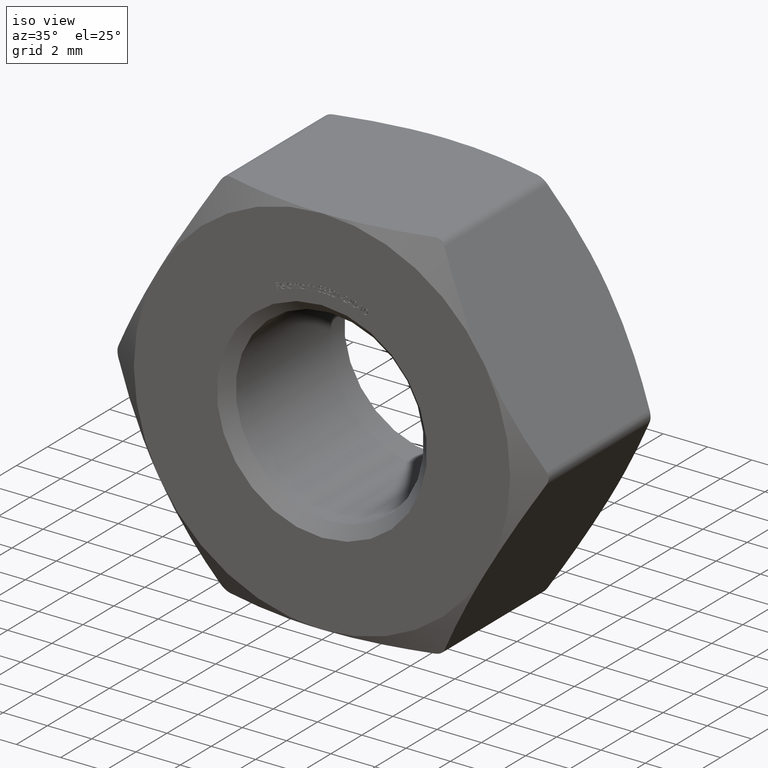
[diagram: clean part render]
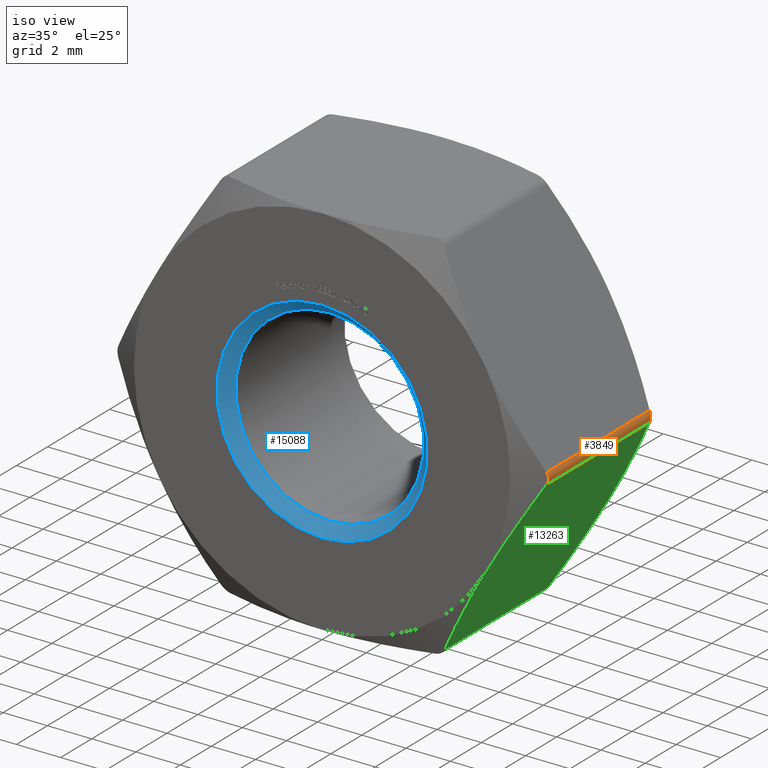
[diagram: same view with three faces highlighted in distinct colors, each labeled with its STEP entity id]
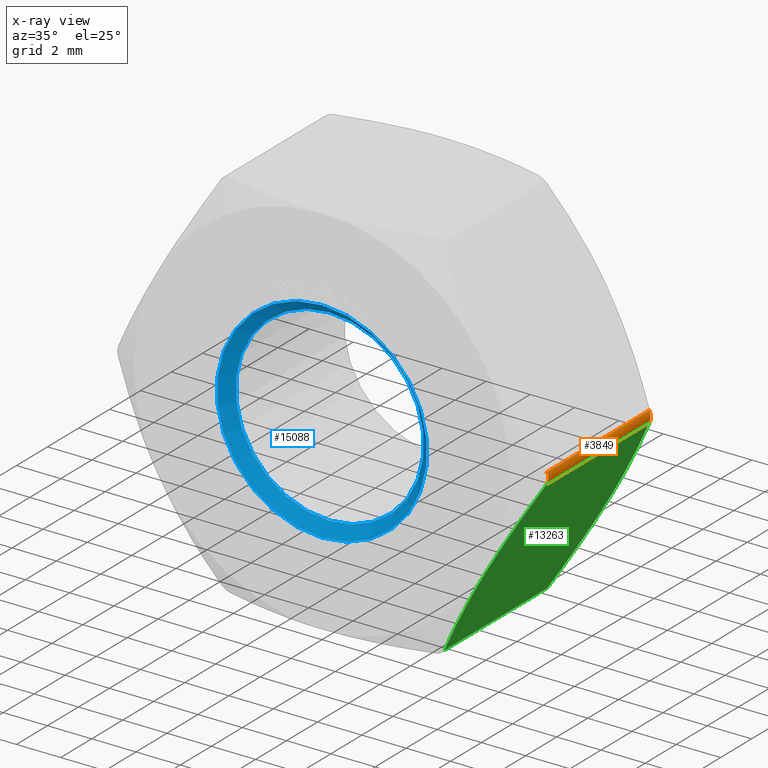
[diagram: x-ray of the same camera — body ghosted, the three highlighted faces saturated]
A machine part, iso view with three faces highlighted in distinct colors.
The next image is the same camera in x-ray (body ghosted, the three faces saturated) — at least one of them is partly hidden behind the body in this view.
Their STEP definitions:

[orange] entity #3849 — the highlighted cylindrical surface (edge-blend (fillet) strip) has radius 0.5 mm, axis along (0, -1, 0).
#178 = ORIENTED_EDGE ( 'NONE', *, *, #8561, .F. ) ;
#309 = CARTESIAN_POINT ( 'NONE',  ( 9.737682909658110100, 3.285425769142569200, -0.08763185436934718700 ) ) ;
#1094 = DIRECTION ( 'NONE',  ( -0.0000000000000000000, 1.000000000000000000, -0.0000000000000000000 ) ) ;
#1110 = CARTESIAN_POINT ( 'NONE',  ( 9.670617008926230400, -3.322278594739815900, 0.2499999999999977800 ) ) ;
#1359 = CARTESIAN_POINT ( 'NONE',  ( 9.237604307034011700, 4.000000000000000000, -1.734723475976807100E-015 ) ) ;
#3149 = CARTESIAN_POINT ( 'NONE',  ( 9.670617008926848600, -3.322278594739476200, -0.2499999999989319700 ) ) ;
#3496 = CARTESIAN_POINT ( 'NONE',  ( 9.670617008926848600, -3.322278594739476200, -0.2499999999989319700 ) ) ;
#3849 = ADVANCED_FACE ( 'NONE', ( #6424 ), #15843, .T. ) ;
#4285 = VECTOR ( 'NONE', #1094, 1000.000000000000000 ) ;
#4697 = B_SPLINE_CURVE_WITH_KNOTS ( 'NONE', 3,
 ( #3496, #15808, #7019, #9686, #12061, #1110 ),
 .UNSPECIFIED., .F., .F.,
 ( 4, 2, 4 ),
 ( 1.197850995678579900E-015, 0.0002637416435134465900, 0.0005274832870256953400 ),
 .UNSPECIFIED. ) ;
#5194 = VERTEX_POINT ( 'NONE', #15193 ) ;
#6328 = DIRECTION ( 'NONE',  ( 0.0000000000000000000, 0.0000000000000000000, -1.000000000000000000 ) ) ;
#6424 = FACE_OUTER_BOUND ( 'NONE', #14708, .T. ) ;
#7019 = CARTESIAN_POINT ( 'NONE',  ( 9.737525304183556300, -3.285512090430725800, -0.08852653450625097600 ) ) ;
#7083 = VERTEX_POINT ( 'NONE', #3149 ) ;
#7108 = VECTOR ( 'NONE', #13741, 1000.000000000000000 ) ;
#7594 = CARTESIAN_POINT ( 'NONE',  ( 9.713575952496436000, 3.298594703086405600, -0.1755929270969193700 ) ) ;
#7717 = EDGE_CURVE ( 'NONE', #7083, #15048, #4697, .T. ) ;
#7748 = CARTESIAN_POINT ( 'NONE',  ( 9.670617008926848600, 3.322278594739475700, 0.2499999999989287200 ) ) ;
#8561 = EDGE_CURVE ( 'NONE', #13923, #7083, #9959, .T. ) ;
#8806 = DIRECTION ( 'NONE',  ( 0.0000000000000000000, -1.000000000000000000, 0.0000000000000000000 ) ) ;
#9106 = AXIS2_PLACEMENT_3D ( 'NONE', #1359, #8806, #6328 ) ;
#9578 = EDGE_CURVE ( 'NONE', #5194, #13923, #9701, .T. ) ;
#9686 = CARTESIAN_POINT ( 'NONE',  ( 9.737682909658110100, -3.285425769142569200, 0.08763185436934302400 ) ) ;
#9701 = B_SPLINE_CURVE_WITH_KNOTS ( 'NONE', 3,
 ( #7748, #15124, #12620, #309, #7594, #13744 ),
 .UNSPECIFIED., .F., .F.,
 ( 4, 2, 4 ),
 ( 1.197603556906642600E-015, 0.0002637416435134468600, 0.0005274832870256961000 ),
 .UNSPECIFIED. ) ;
#9959 = LINE ( 'NONE', #10119, #7108 ) ;
#10119 = CARTESIAN_POINT ( 'NONE',  ( 9.670617008926230400, 4.000000000000000000, -0.2500000000000020500 ) ) ;
#10139 = ORIENTED_EDGE ( 'NONE', *, *, #7717, .F. ) ;
#10143 = EDGE_CURVE ( 'NONE', #15048, #5194, #14455, .T. ) ;
#10687 = ORIENTED_EDGE ( 'NONE', *, *, #10143, .F. ) ;
#12061 = CARTESIAN_POINT ( 'NONE',  ( 9.713575952496436000, -3.298594703086405600, 0.1755929270969157900 ) ) ;
#12221 = CARTESIAN_POINT ( 'NONE',  ( 9.670617008926230400, 4.000000000000000000, 0.2499999999999985000 ) ) ;
#12620 = CARTESIAN_POINT ( 'NONE',  ( 9.737525304183556300, 3.285512090430725800, 0.08852653450624722900 ) ) ;
#13256 = CARTESIAN_POINT ( 'NONE',  ( 9.670617008926230400, -3.322278594739815900, 0.2499999999999977800 ) ) ;
#13513 = CARTESIAN_POINT ( 'NONE',  ( 9.670617008926230400, 3.322278594739816300, -0.2500000000000025000 ) ) ;
#13741 = DIRECTION ( 'NONE',  ( 0.0000000000000000000, -1.000000000000000000, 0.0000000000000000000 ) ) ;
#13744 = CARTESIAN_POINT ( 'NONE',  ( 9.670617008926230400, 3.322278594739816300, -0.2500000000000025000 ) ) ;
#13923 = VERTEX_POINT ( 'NONE', #13513 ) ;
#14455 = LINE ( 'NONE', #12221, #4285 ) ;
#14627 = ORIENTED_EDGE ( 'NONE', *, *, #9578, .F. ) ;
#14708 = EDGE_LOOP ( 'NONE', ( #14627, #10687, #10139, #178 ) ) ;
#15048 = VERTEX_POINT ( 'NONE', #13256 ) ;
#15124 = CARTESIAN_POINT ( 'NONE',  ( 9.713560539827369700, 3.298603200315139500, 0.1756196226228233000 ) ) ;
#15193 = CARTESIAN_POINT ( 'NONE',  ( 9.670617008926848600, 3.322278594739475700, 0.2499999999989287200 ) ) ;
#15808 = CARTESIAN_POINT ( 'NONE',  ( 9.713560539827369700, -3.298603200315141300, -0.1756196226228270700 ) ) ;
#15843 = CYLINDRICAL_SURFACE ( 'NONE', #9106, 0.5000000000000000000 ) ;

[blue] entity #15088 — the highlighted conical surface has half-angle 45 deg.
#275 = VERTEX_POINT ( 'NONE', #6216 ) ;
#935 = CIRCLE ( 'NONE', #9716, 4.749999999999995600 ) ;
#1264 = EDGE_CURVE ( 'NONE', #6247, #6247, #935, .T. ) ;
#1854 = DIRECTION ( 'NONE',  ( 0.0000000000000000000, 1.000000000000000000, 0.0000000000000000000 ) ) ;
#2129 = FACE_BOUND ( 'NONE', #7154, .T. ) ;
#4511 = DIRECTION ( 'NONE',  ( -0.0000000000000000000, -1.000000000000000000, -0.0000000000000000000 ) ) ;
#5134 = AXIS2_PLACEMENT_3D ( 'NONE', #10609, #4511, #5791 ) ;
#5791 = DIRECTION ( 'NONE',  ( 0.0000000000000000000, 0.0000000000000000000, 1.000000000000000000 ) ) ;
#5892 = DIRECTION ( 'NONE',  ( 0.0000000000000000000, 0.0000000000000000000, -1.000000000000000000 ) ) ;
#6064 = CARTESIAN_POINT ( 'NONE',  ( 0.0000000000000000000, -4.000000000000000000, 4.749999999999995600 ) ) ;
#6216 = CARTESIAN_POINT ( 'NONE',  ( 0.0000000000000000000, -3.499999999999998700, 4.249999999999998200 ) ) ;
#6247 = VERTEX_POINT ( 'NONE', #6064 ) ;
#6723 = CIRCLE ( 'NONE', #5134, 4.249999999999998200 ) ;
#7078 = DIRECTION ( 'NONE',  ( -0.0000000000000000000, -1.000000000000000000, -0.0000000000000000000 ) ) ;
#7135 = CARTESIAN_POINT ( 'NONE',  ( 0.0000000000000000000, -4.000000000000000000, 0.0000000000000000000 ) ) ;
#7154 = EDGE_LOOP ( 'NONE', ( #11239 ) ) ;
#8048 = EDGE_CURVE ( 'NONE', #275, #275, #6723, .T. ) ;
#8786 = CONICAL_SURFACE ( 'NONE', #11225, 4.749999999999995600, 0.7853981633974439500 ) ;
#8903 = EDGE_LOOP ( 'NONE', ( #14983 ) ) ;
#9716 = AXIS2_PLACEMENT_3D ( 'NONE', #14184, #1854, #12912 ) ;
#10609 = CARTESIAN_POINT ( 'NONE',  ( 0.0000000000000000000, -3.499999999999998700, 0.0000000000000000000 ) ) ;
#11225 = AXIS2_PLACEMENT_3D ( 'NONE', #7135, #7078, #5892 ) ;
#11239 = ORIENTED_EDGE ( 'NONE', *, *, #8048, .F. ) ;
#12912 = DIRECTION ( 'NONE',  ( 0.0000000000000000000, 0.0000000000000000000, 1.000000000000000000 ) ) ;
#14184 = CARTESIAN_POINT ( 'NONE',  ( 0.0000000000000000000, -4.000000000000000000, 0.0000000000000000000 ) ) ;
#14983 = ORIENTED_EDGE ( 'NONE', *, *, #1264, .F. ) ;
#15088 = ADVANCED_FACE ( 'NONE', ( #2129, #15268 ), #8786, .F. ) ;
#15268 = FACE_OUTER_BOUND ( 'NONE', #8903, .T. ) ;

[green] entity #13263 — the highlighted planar face has unit normal (-0.866, 0, 0.5).
#519 = EDGE_LOOP ( 'NONE', ( #7735, #1246, #12788, #5006, #9847, #6631 ) ) ;
#639 = CARTESIAN_POINT ( 'NONE',  ( 8.142655729170904500, -3.936145617773009400, -2.896506568534188600 ) ) ;
#1117 = CARTESIAN_POINT ( 'NONE',  ( 7.753624804237800200, 3.984157063911049500, -3.570327896233836700 ) ) ;
#1246 = ORIENTED_EDGE ( 'NONE', *, *, #8561, .T. ) ;
#1640 = DIRECTION ( 'NONE',  ( -0.0000000000000000000, 1.000000000000000000, -0.0000000000000000000 ) ) ;
#1732 = CARTESIAN_POINT ( 'NONE',  ( 6.579538832769365800, -3.922654203673380500, -5.603904451271023200 ) ) ;
#1897 = CARTESIAN_POINT ( 'NONE',  ( 7.361215932167727500, -4.000000000000000000, -4.250000000000002700 ) ) ;
#2377 = CARTESIAN_POINT ( 'NONE',  ( 7.556958195047243100, 4.000000000000007100, -3.910964455504173800 ) ) ;
#2668 = VERTEX_POINT ( 'NONE', #2678 ) ;
#2678 = CARTESIAN_POINT ( 'NONE',  ( 5.051814855408603800, 3.322278594739476200, -8.250000000001071100 ) ) ;
#2747 = CARTESIAN_POINT ( 'NONE',  ( 9.670617008926230400, 3.322278594739816300, -0.2500000000000025000 ) ) ;
#2967 = CARTESIAN_POINT ( 'NONE',  ( 5.809205748559690200, -3.700599545140475800, -6.938160491873421000 ) ) ;
#3097 = CARTESIAN_POINT ( 'NONE',  ( 5.810627609606806100, 3.701163182834506800, -6.935697756298510300 ) ) ;
#3149 = CARTESIAN_POINT ( 'NONE',  ( 9.670617008926848600, -3.322278594739476200, -0.2499999999989319700 ) ) ;
#3867 = CARTESIAN_POINT ( 'NONE',  ( 9.293475548978769000, 3.530202177888618100, -0.9032281702697123600 ) ) ;
#3964 = CARTESIAN_POINT ( 'NONE',  ( 5.051814855409221900, -3.322278594739815900, -8.250000000000000000 ) ) ;
#4159 = CARTESIAN_POINT ( 'NONE',  ( 5.429858104810861600, 3.530699347556997200, -7.595209884577929700 ) ) ;
#5006 = ORIENTED_EDGE ( 'NONE', *, *, #8701, .T. ) ;
#5181 = CARTESIAN_POINT ( 'NONE',  ( 8.913226115775762200, 3.700599545140474500, -1.561839508126582800 ) ) ;
#5348 = EDGE_CURVE ( 'NONE', #2668, #12153, #5977, .T. ) ;
#5459 = AXIS2_PLACEMENT_3D ( 'NONE', #14585, #6103, #12245 ) ;
#5578 = CARTESIAN_POINT ( 'NONE',  ( 5.051814855409221900, -3.322278594739815900, -8.250000000000000000 ) ) ;
#5977 = B_SPLINE_CURVE_WITH_KNOTS ( 'NONE', 3,
 ( #12847, #4159, #3097, #11652, #12905, #6774 ),
 .UNSPECIFIED., .F., .F.,
 ( 4, 2, 4 ),
 ( 0.0002975640376514574200, 0.002631682780503385700, 0.004965801523355313700 ),
 .UNSPECIFIED. ) ;
#6017 = LINE ( 'NONE', #15190, #8896 ) ;
#6103 = DIRECTION ( 'NONE',  ( -0.8660254037844384900, 0.0000000000000000000, 0.5000000000000004400 ) ) ;
#6465 = VERTEX_POINT ( 'NONE', #11393 ) ;
#6631 = ORIENTED_EDGE ( 'NONE', *, *, #5348, .T. ) ;
#6774 = CARTESIAN_POINT ( 'NONE',  ( 7.361215932167727500, 4.000000000000000000, -4.250000000000002700 ) ) ;
#7022 = EDGE_CURVE ( 'NONE', #7083, #6465, #9809, .T. ) ;
#7048 = FACE_OUTER_BOUND ( 'NONE', #519, .T. ) ;
#7083 = VERTEX_POINT ( 'NONE', #3149 ) ;
#7108 = VECTOR ( 'NONE', #13741, 1000.000000000000000 ) ;
#7735 = ORIENTED_EDGE ( 'NONE', *, *, #12182, .T. ) ;
#8430 = PLANE ( 'NONE',  #5459 ) ;
#8561 = EDGE_CURVE ( 'NONE', #13923, #7083, #9959, .T. ) ;
#8701 = EDGE_CURVE ( 'NONE', #6465, #14002, #14630, .T. ) ;
#8896 = VECTOR ( 'NONE', #1640, 1000.000000000000000 ) ;
#9191 = CARTESIAN_POINT ( 'NONE',  ( 7.361215932167727500, -4.000000000000000000, -4.250000000000002700 ) ) ;
#9351 = CARTESIAN_POINT ( 'NONE',  ( 7.754229000995561400, -4.000000000000005300, -3.569281396751628100 ) ) ;
#9401 = EDGE_CURVE ( 'NONE', #14002, #2668, #6017, .T. ) ;
#9809 = B_SPLINE_CURVE_WITH_KNOTS ( 'NONE', 3,
 ( #14356, #12849, #13067, #639, #9351, #9191 ),
 .UNSPECIFIED., .F., .F.,
 ( 4, 2, 4 ),
 ( 0.0002975640376514565500, 0.002631682780503384800, 0.004965801523355313700 ),
 .UNSPECIFIED. ) ;
#9847 = ORIENTED_EDGE ( 'NONE', *, *, #9401, .T. ) ;
#9959 = LINE ( 'NONE', #10119, #7108 ) ;
#10119 = CARTESIAN_POINT ( 'NONE',  ( 9.670617008926230400, 4.000000000000000000, -0.2500000000000020500 ) ) ;
#10452 = CARTESIAN_POINT ( 'NONE',  ( 6.968807060097653000, -3.984157063911050400, -4.929672103766166400 ) ) ;
#10932 = CARTESIAN_POINT ( 'NONE',  ( 8.142893031566083900, 3.922654203673382200, -2.896095548728976800 ) ) ;
#11096 = CARTESIAN_POINT ( 'NONE',  ( 7.361215932167727500, 4.000000000000000000, -4.250000000000002700 ) ) ;
#11250 = CARTESIAN_POINT ( 'NONE',  ( 8.336297064518998200, 3.877050562629693600, -2.561109937265800600 ) ) ;
#11393 = CARTESIAN_POINT ( 'NONE',  ( 7.361215932167727500, -4.000000000000000000, -4.250000000000002700 ) ) ;
#11535 = CARTESIAN_POINT ( 'NONE',  ( 5.428956315356686900, -3.530202177888619500, -7.596771829730292900 ) ) ;
#11652 = CARTESIAN_POINT ( 'NONE',  ( 6.579776135164548700, 3.936145617773009400, -5.603493431465812700 ) ) ;
#12153 = VERTEX_POINT ( 'NONE', #15870 ) ;
#12182 = EDGE_CURVE ( 'NONE', #12153, #13923, #12411, .T. ) ;
#12245 = DIRECTION ( 'NONE',  ( 0.5000000000000003300, 0.0000000000000000000, 0.8660254037844383700 ) ) ;
#12411 = B_SPLINE_CURVE_WITH_KNOTS ( 'NONE', 3,
 ( #11096, #2377, #1117, #10932, #11250, #5181, #3867, #2747 ),
 .UNSPECIFIED., .F., .F.,
 ( 4, 2, 2, 4 ),
 ( 0.004965801523355313700, 0.006128321858666295100, 0.007290842193977274900, 0.009615882864599231700 ),
 .UNSPECIFIED. ) ;
#12788 = ORIENTED_EDGE ( 'NONE', *, *, #7022, .T. ) ;
#12831 = CARTESIAN_POINT ( 'NONE',  ( 6.386134799816448800, -3.877050562629693600, -5.938890062734202500 ) ) ;
#12847 = CARTESIAN_POINT ( 'NONE',  ( 5.051814855408603800, 3.322278594739476200, -8.250000000001071100 ) ) ;
#12849 = CARTESIAN_POINT ( 'NONE',  ( 9.292573759524593400, -3.530699347556995900, -0.9047901154220725500 ) ) ;
#12905 = CARTESIAN_POINT ( 'NONE',  ( 6.968202863339890900, 4.000000000000007100, -4.930718603248373600 ) ) ;
#13067 = CARTESIAN_POINT ( 'NONE',  ( 8.911804254728643600, -3.701163182834505500, -1.564302243701492400 ) ) ;
#13263 = ADVANCED_FACE ( 'NONE', ( #7048 ), #8430, .F. ) ;
#13513 = CARTESIAN_POINT ( 'NONE',  ( 9.670617008926230400, 3.322278594739816300, -0.2500000000000025000 ) ) ;
#13741 = DIRECTION ( 'NONE',  ( 0.0000000000000000000, -1.000000000000000000, 0.0000000000000000000 ) ) ;
#13923 = VERTEX_POINT ( 'NONE', #13513 ) ;
#14002 = VERTEX_POINT ( 'NONE', #3964 ) ;
#14113 = CARTESIAN_POINT ( 'NONE',  ( 7.165473669288208400, -4.000000000000005300, -4.589035544495828000 ) ) ;
#14356 = CARTESIAN_POINT ( 'NONE',  ( 9.670617008926848600, -3.322278594739476200, -0.2499999999989319700 ) ) ;
#14585 = CARTESIAN_POINT ( 'NONE',  ( 9.814954576223637900, 4.000000000000000000, -1.790035220313711700E-015 ) ) ;
#14630 = B_SPLINE_CURVE_WITH_KNOTS ( 'NONE', 3,
 ( #1897, #14113, #10452, #1732, #12831, #2967, #11535, #5578 ),
 .UNSPECIFIED., .F., .F.,
 ( 4, 2, 2, 4 ),
 ( 0.004965801523355313700, 0.006128321858666293400, 0.007290842193977272200, 0.009615882864599233400 ),
 .UNSPECIFIED. ) ;
#15190 = CARTESIAN_POINT ( 'NONE',  ( 5.051814855409221000, 4.000000000000000000, -8.250000000000000000 ) ) ;
#15870 = CARTESIAN_POINT ( 'NONE',  ( 7.361215932167727500, 4.000000000000000000, -4.250000000000002700 ) ) ;